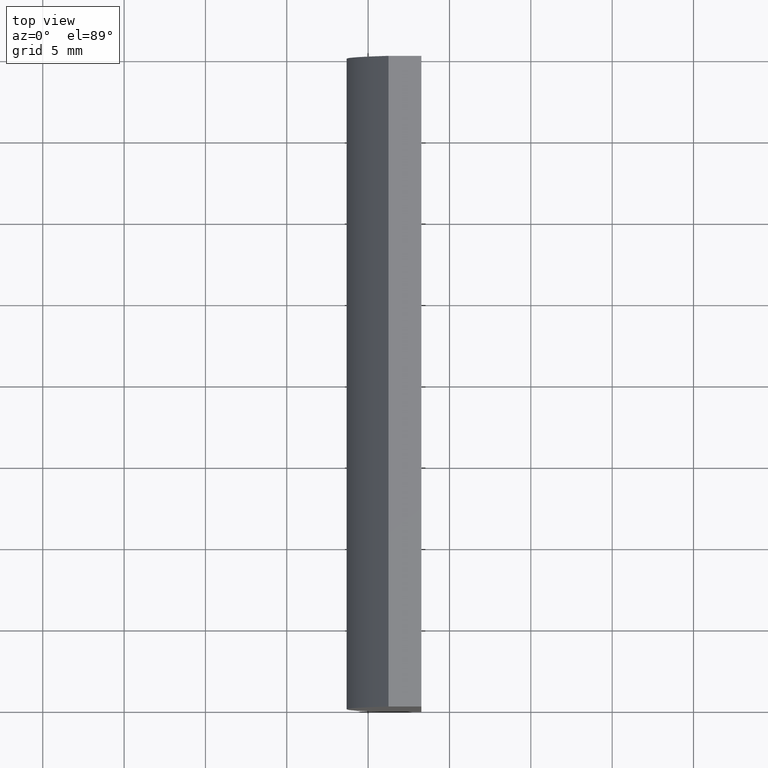
[diagram: clean part render]
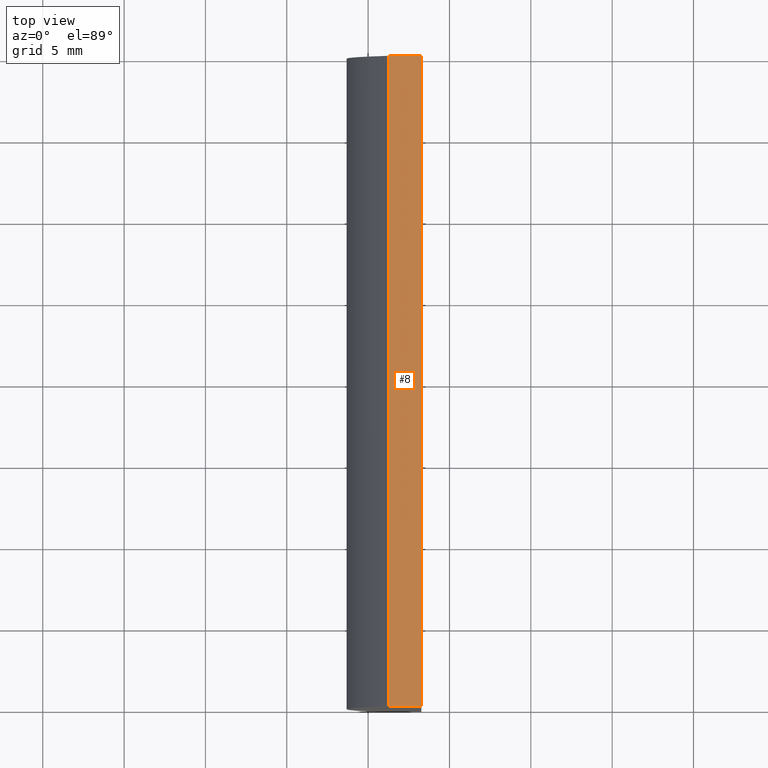
[diagram: same view with one face highlighted and labeled with its STEP entity id]
A machine part, top view. The second image highlights one B-rep face of the part: STEP entity #8.
In plain terms, the highlighted planar face has unit normal (0, 0, -1).
Its self-contained STEP definition (entity closure, byte-faithful):
#2 = ORIENTED_EDGE ( 'NONE', *, *, #20, .T. ) ;
#8 = ADVANCED_FACE ( 'NONE', ( #180 ), #115, .F. ) ;
#9 = DIRECTION ( 'NONE',  ( 1.000000000000000000, 0.0000000000000000000, 0.0000000000000000000 ) ) ;
#18 = CARTESIAN_POINT ( 'NONE',  ( -11.72479566514873100, 40.00000000000000000, 10.00000000000000000 ) ) ;
#20 = EDGE_CURVE ( 'NONE', #101, #117, #181, .T. ) ;
#22 = LINE ( 'NONE', #23, #131 ) ;
#23 = CARTESIAN_POINT ( 'NONE',  ( -13.74624312108440400, 40.00000000000000000, 10.00000000000000000 ) ) ;
#30 = VERTEX_POINT ( 'NONE', #156 ) ;
#32 = CARTESIAN_POINT ( 'NONE',  ( -13.74624312108440400, 40.00000000000000000, 10.00000000000000000 ) ) ;
#33 = DIRECTION ( 'NONE',  ( -1.000000000000000000, 0.0000000000000000000, -0.0000000000000000000 ) ) ;
#46 = EDGE_CURVE ( 'NONE', #80, #30, #22, .T. ) ;
#48 = EDGE_CURVE ( 'NONE', #80, #101, #69, .T. ) ;
#53 = EDGE_CURVE ( 'NONE', #30, #117, #143, .T. ) ;
#54 = DIRECTION ( 'NONE',  ( 0.0000000000000000000, 0.0000000000000000000, -1.000000000000000000 ) ) ;
#58 = CARTESIAN_POINT ( 'NONE',  ( -13.74624312108440400, 40.00000000000000000, 10.00000000000000000 ) ) ;
#60 = ORIENTED_EDGE ( 'NONE', *, *, #53, .F. ) ;
#63 = ORIENTED_EDGE ( 'NONE', *, *, #46, .F. ) ;
#69 = LINE ( 'NONE', #32, #202 ) ;
#80 = VERTEX_POINT ( 'NONE', #58 ) ;
#86 = AXIS2_PLACEMENT_3D ( 'NONE', #177, #54, #33 ) ;
#99 = DIRECTION ( 'NONE',  ( 1.000000000000000000, 0.0000000000000000000, 0.0000000000000000000 ) ) ;
#101 = VERTEX_POINT ( 'NONE', #173 ) ;
#115 = PLANE ( 'NONE',  #86 ) ;
#117 = VERTEX_POINT ( 'NONE', #134 ) ;
#131 = VECTOR ( 'NONE', #9, 1000.000000000000000 ) ;
#132 = DIRECTION ( 'NONE',  ( -0.0000000000000000000, -1.000000000000000000, -0.0000000000000000000 ) ) ;
#134 = CARTESIAN_POINT ( 'NONE',  ( -11.72479566514873100, 0.0000000000000000000, 10.00000000000000000 ) ) ;
#143 = LINE ( 'NONE', #18, #147 ) ;
#147 = VECTOR ( 'NONE', #197, 1000.000000000000000 ) ;
#153 = EDGE_LOOP ( 'NONE', ( #2, #60, #63, #155 ) ) ;
#155 = ORIENTED_EDGE ( 'NONE', *, *, #48, .T. ) ;
#156 = CARTESIAN_POINT ( 'NONE',  ( -11.72479566514873100, 40.00000000000000000, 10.00000000000000000 ) ) ;
#161 = VECTOR ( 'NONE', #99, 1000.000000000000000 ) ;
#173 = CARTESIAN_POINT ( 'NONE',  ( -13.74624312108440400, 0.0000000000000000000, 10.00000000000000000 ) ) ;
#177 = CARTESIAN_POINT ( 'NONE',  ( -13.74624312108440400, 40.00000000000000000, 10.00000000000000000 ) ) ;
#180 = FACE_OUTER_BOUND ( 'NONE', #153, .T. ) ;
#181 = LINE ( 'NONE', #194, #161 ) ;
#194 = CARTESIAN_POINT ( 'NONE',  ( -13.74624312108440400, 0.0000000000000000000, 10.00000000000000000 ) ) ;
#197 = DIRECTION ( 'NONE',  ( -0.0000000000000000000, -1.000000000000000000, -0.0000000000000000000 ) ) ;
#202 = VECTOR ( 'NONE', #132, 1000.000000000000000 ) ;